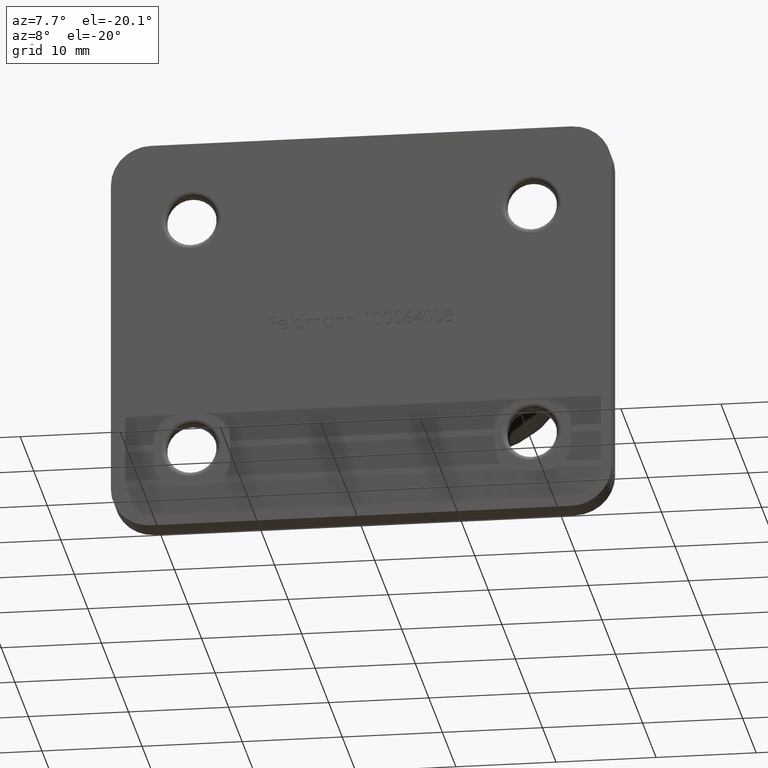
[diagram: clean part render]
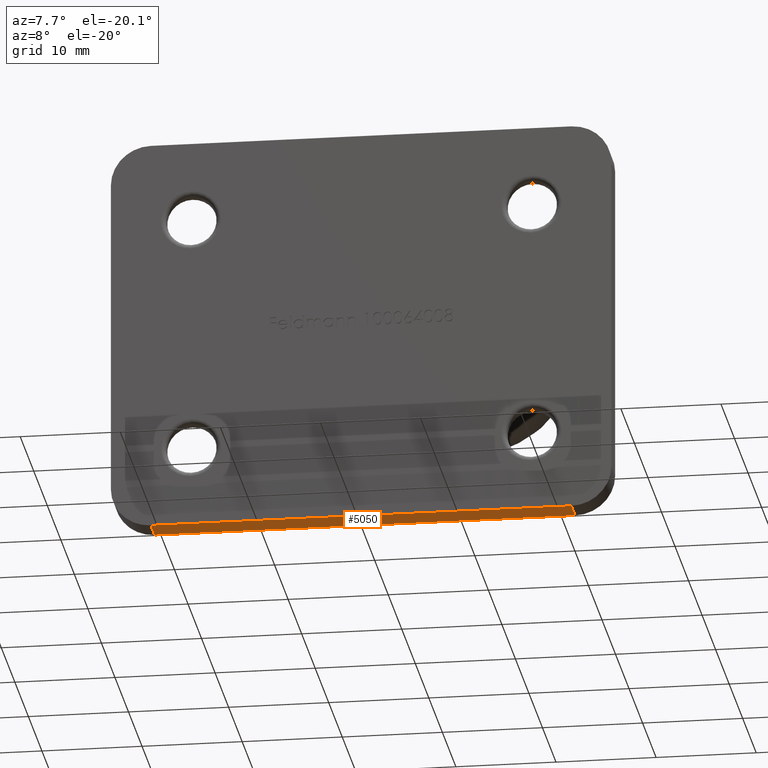
[diagram: same view with one face highlighted and labeled with its STEP entity id]
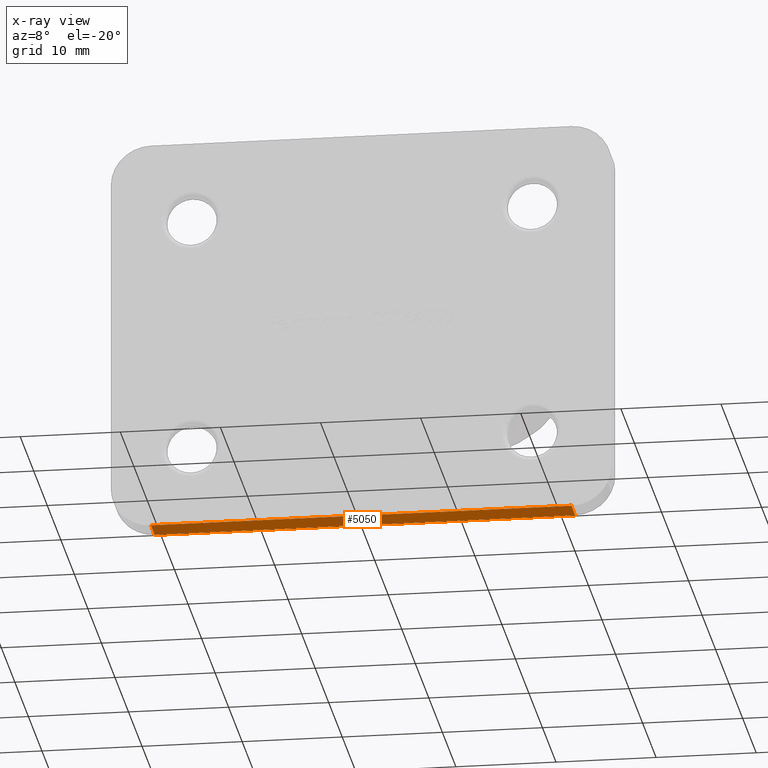
[diagram: x-ray of the same camera — body ghosted, the highlighted face saturated]
A machine part, auxiliary view. The second image highlights one B-rep face of the part: STEP entity #5050.
The next image is the same camera in x-ray: the body ghosted, the highlighted face saturated — about 0% of this face is hidden behind the body in this view.
In plain terms, the highlighted planar face has unit normal (0, -0, 1).
Its self-contained STEP definition (entity closure, byte-faithful):
#615 = VECTOR ( 'NONE', #9723, 1000.000000000000000 ) ;
#1886 = CARTESIAN_POINT ( 'NONE',  ( -21.00000000000000400, 0.0000000000000000000, -19.99999999999999600 ) ) ;
#2099 = VERTEX_POINT ( 'NONE', #5248 ) ;
#2343 = VERTEX_POINT ( 'NONE', #7992 ) ;
#3448 = LINE ( 'NONE', #5519, #6231 ) ;
#3750 = LINE ( 'NONE', #11558, #11657 ) ;
#3754 = DIRECTION ( 'NONE',  ( 0.0000000000000000000, -1.000000000000000000, 0.0000000000000000000 ) ) ;
#3851 = CARTESIAN_POINT ( 'NONE',  ( 20.99999999999999300, 2.799999999999999800, -20.00000000000000000 ) ) ;
#4921 = ORIENTED_EDGE ( 'NONE', *, *, #11245, .T. ) ;
#5050 = ADVANCED_FACE ( 'NONE', ( #10407 ), #12504, .F. ) ;
#5248 = CARTESIAN_POINT ( 'NONE',  ( -21.00000000000000400, 2.799999999999999800, -19.99999999999999600 ) ) ;
#5519 = CARTESIAN_POINT ( 'NONE',  ( 24.99999999999999300, 2.799999999999999800, -20.00000000000000000 ) ) ;
#6231 = VECTOR ( 'NONE', #15000, 1000.000000000000000 ) ;
#6774 = DIRECTION ( 'NONE',  ( -1.000000000000000000, 0.0000000000000000000, 6.938893903907228400E-017 ) ) ;
#6958 = VERTEX_POINT ( 'NONE', #11670 ) ;
#6967 = AXIS2_PLACEMENT_3D ( 'NONE', #7564, #7613, #12408 ) ;
#7121 = ORIENTED_EDGE ( 'NONE', *, *, #14465, .T. ) ;
#7564 = CARTESIAN_POINT ( 'NONE',  ( 24.99999999999999300, 2.799999999999999800, -20.00000000000000000 ) ) ;
#7613 = DIRECTION ( 'NONE',  ( 6.938893903907229600E-017, -0.0000000000000000000, 1.000000000000000000 ) ) ;
#7925 = EDGE_LOOP ( 'NONE', ( #7121, #4921, #15037, #12565 ) ) ;
#7992 = CARTESIAN_POINT ( 'NONE',  ( 20.99999999999999300, 0.0000000000000000000, -20.00000000000000000 ) ) ;
#8382 = LINE ( 'NONE', #11946, #615 ) ;
#8494 = EDGE_CURVE ( 'NONE', #6958, #2343, #10084, .T. ) ;
#9064 = VERTEX_POINT ( 'NONE', #1886 ) ;
#9723 = DIRECTION ( 'NONE',  ( -0.0000000000000000000, 1.000000000000000000, -0.0000000000000000000 ) ) ;
#10084 = LINE ( 'NONE', #3851, #15260 ) ;
#10407 = FACE_OUTER_BOUND ( 'NONE', #7925, .T. ) ;
#11245 = EDGE_CURVE ( 'NONE', #9064, #2099, #8382, .T. ) ;
#11558 = CARTESIAN_POINT ( 'NONE',  ( 24.99999999999999300, 0.0000000000000000000, -20.00000000000000000 ) ) ;
#11657 = VECTOR ( 'NONE', #6774, 1000.000000000000000 ) ;
#11670 = CARTESIAN_POINT ( 'NONE',  ( 20.99999999999999300, 2.799999999999999800, -20.00000000000000000 ) ) ;
#11946 = CARTESIAN_POINT ( 'NONE',  ( -21.00000000000000400, 2.799999999999999800, -19.99999999999999600 ) ) ;
#12408 = DIRECTION ( 'NONE',  ( 1.000000000000000000, 0.0000000000000000000, -6.938893903907229600E-017 ) ) ;
#12504 = PLANE ( 'NONE',  #6967 ) ;
#12565 = ORIENTED_EDGE ( 'NONE', *, *, #8494, .T. ) ;
#14465 = EDGE_CURVE ( 'NONE', #2343, #9064, #3750, .T. ) ;
#15000 = DIRECTION ( 'NONE',  ( -1.000000000000000000, 0.0000000000000000000, 6.938893903907228400E-017 ) ) ;
#15037 = ORIENTED_EDGE ( 'NONE', *, *, #15049, .F. ) ;
#15049 = EDGE_CURVE ( 'NONE', #6958, #2099, #3448, .T. ) ;
#15260 = VECTOR ( 'NONE', #3754, 1000.000000000000000 ) ;